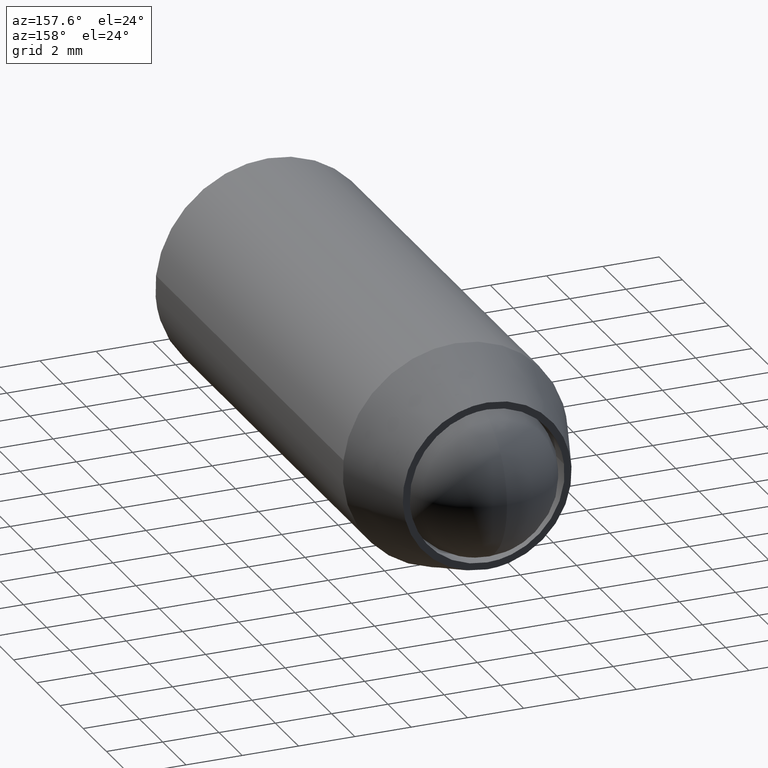
[diagram: clean part render]
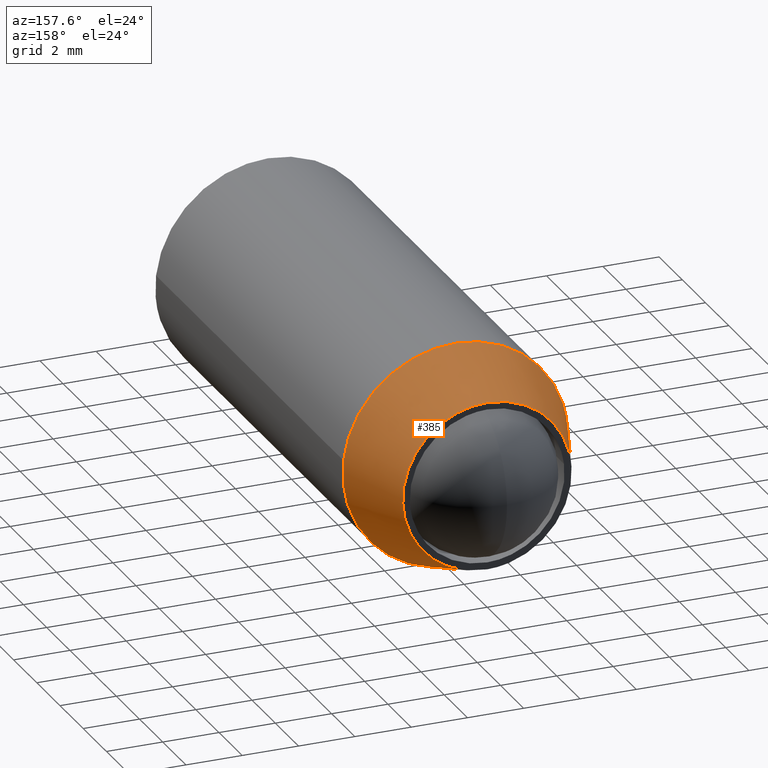
[diagram: same view with one face highlighted and labeled with its STEP entity id]
A machine part, auxiliary view. The second image highlights one B-rep face of the part: STEP entity #385.
In plain terms, the highlighted face is a freeform B-spline surface patch.
Its self-contained STEP definition (entity closure, byte-faithful):
#234=CARTESIAN_POINT('',(-2.412646379587942,0.068686925000000,-1.740621281916663));
#235=CARTESIAN_POINT('',(-1.588163700979914,0.068686925000000,-2.883423090812313));
#236=CARTESIAN_POINT('',(-0.181619405116200,0.068686925000000,-2.969451025305056));
#237=CARTESIAN_POINT('',(2.787831620188855,0.068686925000000,-3.151070430421255));
#238=CARTESIAN_POINT('',(2.969451025305055,0.068686925000000,-0.181619405116200));
#239=CARTESIAN_POINT('',(3.151070430421255,0.068686925000000,2.787831620188855));
#240=CARTESIAN_POINT('',(0.181619405116200,0.068686925000000,2.969451025305054));
#241=CARTESIAN_POINT('',(-2.787831620188855,0.068686925000000,3.151070430421254));
#242=CARTESIAN_POINT('',(-2.969451025305055,0.068686925000000,0.181619405116199));
#243=CARTESIAN_POINT('',(-3.264675489690320,-2.817881098125001,-2.355323881685970));
#244=CARTESIAN_POINT('',(-2.149025713867987,-2.817881098125001,-3.901707589899600));
#245=CARTESIAN_POINT('',(-0.245758526965009,-2.817881098125001,-4.018116397897028));
#246=CARTESIAN_POINT('',(3.772357870932019,-2.817881098125000,-4.263874924862038));
#247=CARTESIAN_POINT('',(4.018116397897027,-2.817881098125001,-0.245758526965009));
#248=CARTESIAN_POINT('',(4.263874924862037,-2.817881098125000,3.772357870932019));
#249=CARTESIAN_POINT('',(0.245758526965009,-2.817881098125001,4.018116397897027));
#250=CARTESIAN_POINT('',(-3.772357870932019,-2.817881098125000,4.263874924862035));
#251=CARTESIAN_POINT('',(-4.018116397897027,-2.817881098125001,0.245758526965008));
#259=(BOUNDED_SURFACE()B_SPLINE_SURFACE(2,1,((#234,#243),(#235,#244),(#236,#245),(#237,#246),(#238,#247),(#239,#248),(#240,#249),(#241,#250),(#242,#251)),.UNSPECIFIED.,.F.,.F.,.U.)B_SPLINE_SURFACE_WITH_KNOTS((3,2,2,2,3),(2,2),(0.0,3.735129377343146,10.405003265455910,17.074877153568671,23.744751041681429),(0.0,3.071821583808665),.UNSPECIFIED.)GEOMETRIC_REPRESENTATION_ITEM()RATIONAL_B_SPLINE_SURFACE(((0.855662221768731,0.855662221768731),(0.835979797464467,0.835979797464467),(1.0,1.0),(0.707106781186548,0.707106781186548),(1.0,1.0),(0.707106781186548,0.707106781186548),(1.0,1.0),(0.707106781186548,0.707106781186548),(1.0,1.0)))REPRESENTATION_ITEM('')SURFACE());
#260=CARTESIAN_POINT('',(-2.432920718910684,-2.809699E-013,-1.755248351514891));
#261=VERTEX_POINT('',#260);
#262=CARTESIAN_POINT('',(0.0,0.0,-3.000000000000001));
#263=VERTEX_POINT('',#262);
#264=CARTESIAN_POINT('',(-2.432920718910684,-2.809699E-013,-1.755248351514890));
#265=CARTESIAN_POINT('',(-1.534885586869182,0.0,-3.000000000000000));
#266=CARTESIAN_POINT('',(0.0,0.0,-3.000000000000001));
#274=(BOUNDED_CURVE()B_SPLINE_CURVE(2,(#264,#265,#266),.UNSPECIFIED.,.F.,.U.)B_SPLINE_CURVE_WITH_KNOTS((3,3),(0.850743050382277,1.0),.UNSPECIFIED.)CURVE()GEOMETRIC_REPRESENTATION_ITEM()RATIONAL_B_SPLINE_CURVE((0.859068214727218,0.825134606384751,1.0))REPRESENTATION_ITEM(''));
#275=EDGE_CURVE('',#261,#263,#274,.T.);
#276=ORIENTED_EDGE('',*,*,#275,.T.);
#277=CARTESIAN_POINT('',(0.0,0.0,2.999999999999999));
#278=VERTEX_POINT('',#277);
#279=CARTESIAN_POINT('',(0.0,0.0,-3.000000000000001));
#280=CARTESIAN_POINT('',(3.0,0.0,-3.0));
#281=CARTESIAN_POINT('',(3.0,0.0,-6.735335E-016));
#282=CARTESIAN_POINT('',(3.0,0.0,2.999999999999999));
#283=CARTESIAN_POINT('',(0.0,0.0,2.999999999999999));
#291=(BOUNDED_CURVE()B_SPLINE_CURVE(2,(#279,#280,#281,#282,#283),.UNSPECIFIED.,.F.,.U.)B_SPLINE_CURVE_WITH_KNOTS((3,2,3),(0.0,0.250000000000000,0.500000000000000),.UNSPECIFIED.)CURVE()GEOMETRIC_REPRESENTATION_ITEM()RATIONAL_B_SPLINE_CURVE((1.0,0.707106781186548,1.0,0.707106781186548,1.0))REPRESENTATION_ITEM(''));
#292=EDGE_CURVE('',#263,#278,#291,.T.);
#293=ORIENTED_EDGE('',*,*,#292,.T.);
#294=CARTESIAN_POINT('',(-2.994404395265736,-4.475316E-012,0.183145618629053));
#295=VERTEX_POINT('',#294);
#296=CARTESIAN_POINT('',(0.0,0.0,2.999999999999999));
#297=CARTESIAN_POINT('',(-2.822118200671037,0.0,2.999999999999999));
#298=CARTESIAN_POINT('',(-2.994404395265736,-4.475316E-012,0.183145618629053));
#306=(BOUNDED_CURVE()B_SPLINE_CURVE(2,(#296,#297,#298),.UNSPECIFIED.,.F.,.U.)B_SPLINE_CURVE_WITH_KNOTS((3,3),(0.500000000000000,0.739332962239158),.UNSPECIFIED.)CURVE()GEOMETRIC_REPRESENTATION_ITEM()RATIONAL_B_SPLINE_CURVE((1.0,0.719603993286458,0.976072041667179))REPRESENTATION_ITEM(''));
#307=EDGE_CURVE('',#278,#295,#306,.T.);
#308=ORIENTED_EDGE('',*,*,#307,.T.);
#309=CARTESIAN_POINT('',(-3.992539385356825,-2.747476995765231,0.244190999084494));
#310=VERTEX_POINT('',#309);
#311=CARTESIAN_POINT('',(-2.994404395265736,-4.475316E-012,0.183145618629053));
#312=CARTESIAN_POINT('',(-3.992539385356825,-2.747476995765231,0.244190999084494));
#313=QUASI_UNIFORM_CURVE('',1,(#311,#312),.UNSPECIFIED.,.F.,.U.);
#314=EDGE_CURVE('',#295,#310,#313,.T.);
#315=ORIENTED_EDGE('',*,*,#314,.T.);
#316=CARTESIAN_POINT('',(0.0,-2.747477000000000,3.999999999999999));
#317=VERTEX_POINT('',#316);
#318=CARTESIAN_POINT('',(0.0,-2.747477000000000,3.999999999999999));
#319=CARTESIAN_POINT('',(-3.762827250393930,-2.747477000000000,4.000000000000000));
#320=CARTESIAN_POINT('',(-3.992539385356825,-2.747476995765231,0.244190999084494));
#328=(BOUNDED_CURVE()B_SPLINE_CURVE(2,(#318,#319,#320),.UNSPECIFIED.,.F.,.U.)B_SPLINE_CURVE_WITH_KNOTS((3,3),(0.500000000000000,0.739333098763761),.UNSPECIFIED.)CURVE()GEOMETRIC_REPRESENTATION_ITEM()RATIONAL_B_SPLINE_CURVE((1.0,0.719603833337937,0.976072334265566))REPRESENTATION_ITEM(''));
#329=EDGE_CURVE('',#317,#310,#328,.T.);
#330=ORIENTED_EDGE('',*,*,#329,.F.);
#331=CARTESIAN_POINT('',(3.973877514733711,-2.747477000000000,0.456396207096037));
#332=VERTEX_POINT('',#331);
#333=CARTESIAN_POINT('',(3.973877514733711,-2.747477000000000,0.456396207096037));
#334=CARTESIAN_POINT('',(3.566897852045294,-2.747477000000000,3.999999999999999));
#335=CARTESIAN_POINT('',(0.0,-2.747477000000000,3.999999999999999));
#343=(BOUNDED_CURVE()B_SPLINE_CURVE(2,(#333,#334,#335),.UNSPECIFIED.,.F.,.U.)B_SPLINE_CURVE_WITH_KNOTS((3,3),(0.269767481110062,0.500000000000000),.UNSPECIFIED.)CURVE()GEOMETRIC_REPRESENTATION_ITEM()RATIONAL_B_SPLINE_CURVE((0.957344278464731,0.730265825867189,1.0))REPRESENTATION_ITEM(''));
#344=EDGE_CURVE('',#332,#317,#343,.T.);
#345=ORIENTED_EDGE('',*,*,#344,.F.);
#346=CARTESIAN_POINT('',(0.0,-2.747477000000000,-4.000000000000001));
#347=VERTEX_POINT('',#346);
#348=CARTESIAN_POINT('',(0.0,-2.747477000000000,-4.000000000000001));
#349=CARTESIAN_POINT('',(4.000000000000000,-2.747477000000000,-4.000000000000001));
#350=CARTESIAN_POINT('',(4.0,-2.747477000000000,-6.735335E-016));
#351=CARTESIAN_POINT('',(4.000000000000001,-2.747477000000000,0.228945682324833));
#352=CARTESIAN_POINT('',(3.973877514733711,-2.747477000000000,0.456396207096037));
#360=(BOUNDED_CURVE()B_SPLINE_CURVE(2,(#348,#349,#350,#351,#352),.UNSPECIFIED.,.F.,.U.)B_SPLINE_CURVE_WITH_KNOTS((3,2,3),(0.0,0.250000000000000,0.269767481110062),.UNSPECIFIED.)CURVE()GEOMETRIC_REPRESENTATION_ITEM()RATIONAL_B_SPLINE_CURVE((1.0,0.707106781186548,1.0,0.976840955319359,0.957344278464731))REPRESENTATION_ITEM(''));
#361=EDGE_CURVE('',#347,#332,#360,.T.);
#362=ORIENTED_EDGE('',*,*,#361,.F.);
#363=CARTESIAN_POINT('',(-3.243894291881534,-2.747477000000260,-2.340331135352250));
#364=VERTEX_POINT('',#363);
#365=CARTESIAN_POINT('',(-3.243894291881534,-2.747477000000260,-2.340331135352251));
#366=CARTESIAN_POINT('',(-2.046514115826994,-2.747477000000000,-4.000000000000002));
#367=CARTESIAN_POINT('',(0.0,-2.747477000000000,-4.000000000000001));
#375=(BOUNDED_CURVE()B_SPLINE_CURVE(2,(#365,#366,#367),.UNSPECIFIED.,.F.,.U.)B_SPLINE_CURVE_WITH_KNOTS((3,3),(0.850743050382192,1.0),.UNSPECIFIED.)CURVE()GEOMETRIC_REPRESENTATION_ITEM()RATIONAL_B_SPLINE_CURVE((0.859068214727257,0.825134606384651,1.0))REPRESENTATION_ITEM(''));
#376=EDGE_CURVE('',#364,#347,#375,.T.);
#377=ORIENTED_EDGE('',*,*,#376,.F.);
#378=CARTESIAN_POINT('',(-2.432920718910684,-2.809699E-013,-1.755248351514891));
#379=CARTESIAN_POINT('',(-3.243894291881534,-2.747477000000260,-2.340331135352250));
#380=QUASI_UNIFORM_CURVE('',1,(#378,#379),.UNSPECIFIED.,.F.,.U.);
#381=EDGE_CURVE('',#261,#364,#380,.T.);
#382=ORIENTED_EDGE('',*,*,#381,.F.);
#383=EDGE_LOOP('',(#276,#293,#308,#315,#330,#345,#362,#377,#382));
#384=FACE_OUTER_BOUND('',#383,.T.);
#385=ADVANCED_FACE('',(#384),#259,.T.);